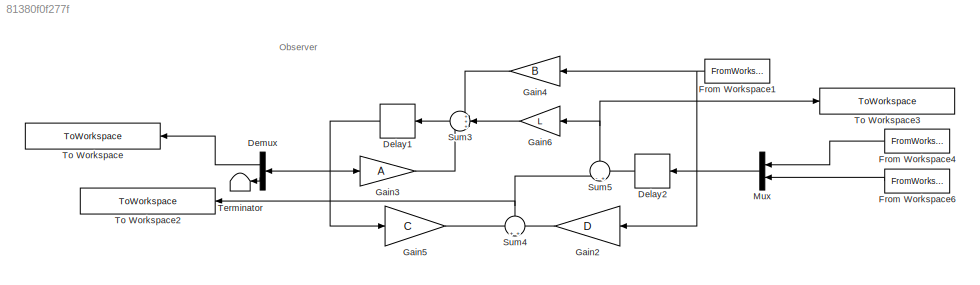
MODEL slx_81380f0f277f
KIND model
CONFIG AbsTol = auto
CONFIG EnableMultiTasking = off
CONFIG FixedStep = Ts
CONFIG MaxStep = auto
CONFIG MinStep = auto
CONFIG RelTol = 1e-3
CONFIG SampleTimeConstraint = Unconstrained
CONFIG SolverName = FixedStepDiscrete
CONFIG StartTime = t3(1)
CONFIG StopTime = t3(end)
BLOCK [Delay] Delay1
  DelayLength = 1
  InitialCondition = 0
  InputPortMap = u0
  Ports = [1, 1]
  SampleTime = Ts
BLOCK [Delay] Delay2
  DelayLength = 1
  InitialCondition = 0
  InputPortMap = u0
  Ports = [1, 1]
  SampleTime = Ts
BLOCK [Demux] Demux
  NameLocation = top
  Outputs = 2
  Ports = [1, 2]
BLOCK [FromWorkspace] From Workspace1
  NameLocation = top
  SampleTime = Ts
  VariableName = Vcmd
BLOCK [FromWorkspace] From Workspace4
  NameLocation = top
  SampleTime = Ts
  VariableName = Im
BLOCK [FromWorkspace] From Workspace6
  NameLocation = top
  SampleTime = Ts
  VariableName = Vp1
BLOCK [Gain] Gain2
  Gain = D
  Multiplication = Matrix(K*u)
  NameLocation = top
BLOCK [Gain] Gain3
  Gain = A
  Multiplication = Matrix(K*u)
BLOCK [Gain] Gain4
  Gain = B
  Multiplication = Matrix(K*u)
  NameLocation = top
BLOCK [Gain] Gain5
  Gain = C
  Multiplication = Matrix(K*u)
BLOCK [Gain] Gain6
  Gain = L
  Multiplication = Matrix(K*u)
  NameLocation = top
BLOCK [Mux] Mux
  DisplayOption = bar
  Inputs = 2
  NameLocation = top
  Ports = [2, 1]
BLOCK [Sum] Sum3
  Inputs = +++
  NameLocation = top
  Ports = [3, 1]
BLOCK [Sum] Sum4
  NameLocation = right
  Ports = [2, 1]
BLOCK [Sum] Sum5
  Inputs = -+
  NameLocation = right
  Ports = [2, 1]
BLOCK [Terminator] Terminator
  NameLocation = top
BLOCK [ToWorkspace] To Workspace
  FixptAsFi = on
  MaxDataPoints = inf
  NameLocation = top
  Ports = [1]
  SampleTime = Ts
  SaveFormat = Timeseries
  VariableName = Vm_estimate
BLOCK [ToWorkspace] To Workspace2
  FixptAsFi = on
  MaxDataPoints = inf
  NameLocation = top
  Ports = [1]
  SampleTime = Ts
  SaveFormat = Timeseries
  VariableName = Im_estimate
BLOCK [ToWorkspace] To Workspace3
  FixptAsFi = on
  MaxDataPoints = inf
  Ports = [1]
  SampleTime = Ts
  SaveFormat = Timeseries
  VariableName = Observer_error
ANNOTATION (root): Observer
NET Delay1:1 -> Demux:1, Gain3:1, Gain5:1
LINE Delay2:1 -> Sum5:2
LINE Demux:1 -> To Workspace:1
LINE Demux:2 -> Terminator:1
NET From Workspace1:1 -> Gain2:1, Gain4:1
LINE From Workspace4:1 -> Mux:1
LINE From Workspace6:1 -> Mux:2
LINE Gain2:1 -> Sum4:2
LINE Gain3:1 -> Sum3:3
LINE Gain4:1 -> Sum3:1
LINE Gain5:1 -> Sum4:1
LINE Gain6:1 -> Sum3:2
LINE Mux:1 -> Delay2:1
LINE Sum3:1 -> Delay1:1
NET Sum4:1 -> Sum5:1, To Workspace2:1
NET Sum5:1 -> Gain6:1, To Workspace3:1
note: NET lines group one-source signal fan-out (src -> all destinations, sorted); 1:1 wires keep LINE
